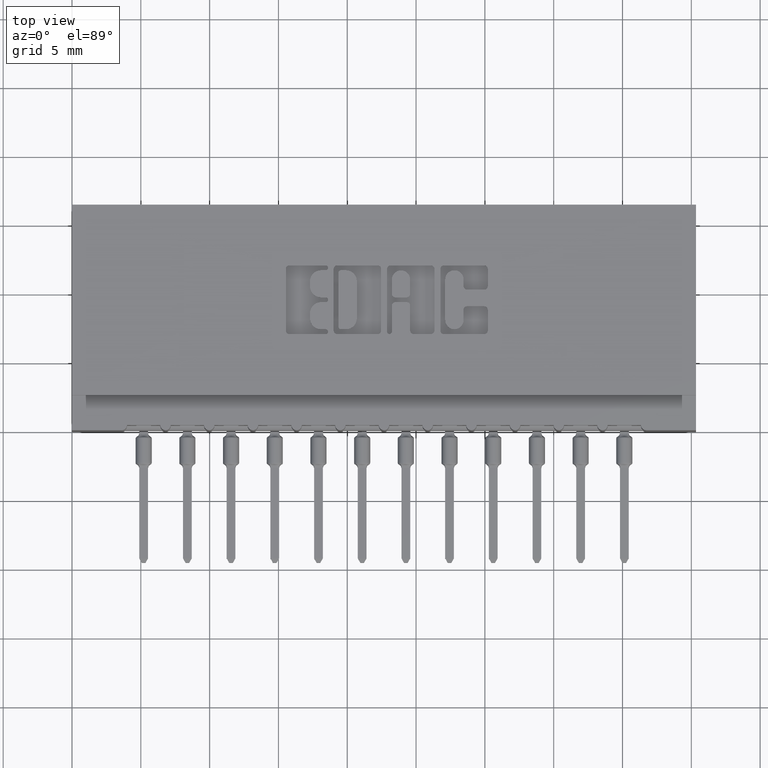
[diagram: clean part render]
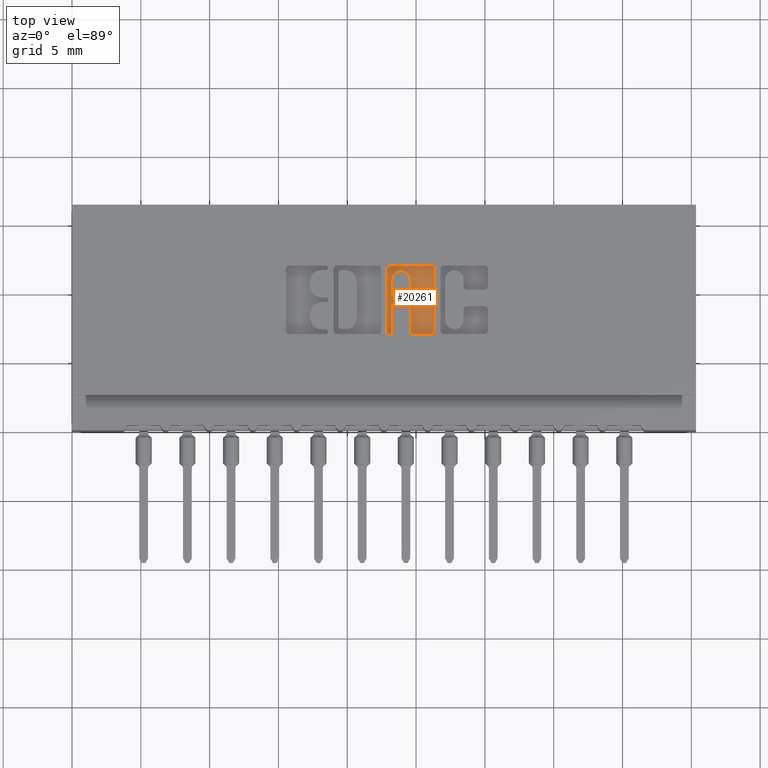
[diagram: same view with one face highlighted and labeled with its STEP entity id]
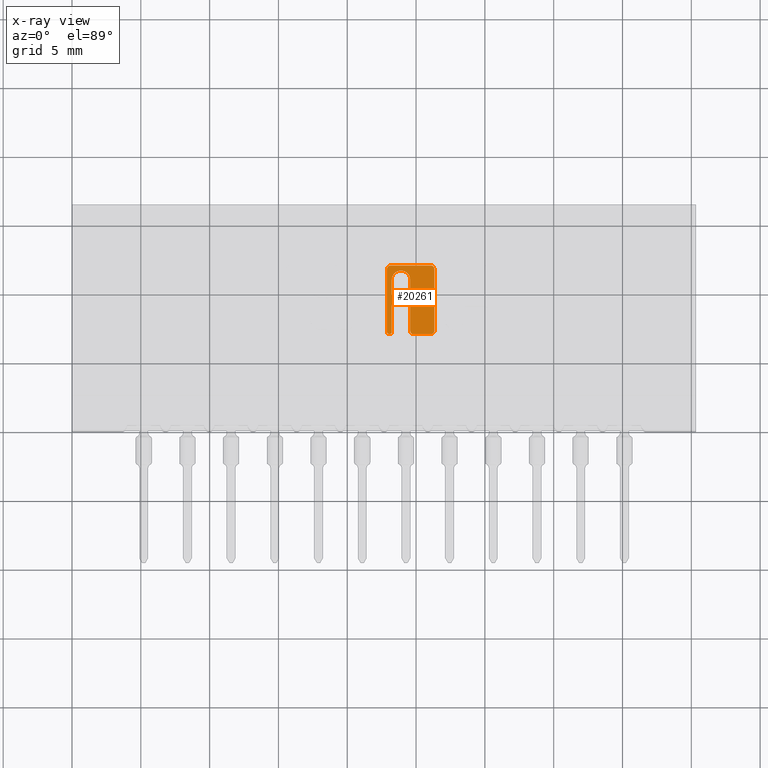
[diagram: x-ray of the same camera — body ghosted, the highlighted face saturated]
A machine part, top view. The second image highlights one B-rep face of the part: STEP entity #20261.
The next image is the same camera in x-ray: the body ghosted, the highlighted face saturated — about 0% of this face is hidden behind the body in this view.
In plain terms, the highlighted planar face has unit normal (0, 0, 1).
Its self-contained STEP definition (entity closure, byte-faithful):
#72 = CARTESIAN_POINT ( 'NONE',  ( 0.9109043816321273912, 0.4608410318342101575, -0.01000000000000000021 ) ) ;
#563 = DIRECTION ( 'NONE',  ( -1.000000000000000000, -4.153954829891640784E-15, 0.0000000000000000000 ) ) ;
#658 = DIRECTION ( 'NONE',  ( -0.0000000000000000000, 0.0000000000000000000, 1.000000000000000000 ) ) ;
#756 = ORIENTED_EDGE ( 'NONE', *, *, #1028, .T. ) ;
#839 = DIRECTION ( 'NONE',  ( -1.000000000000000000, 0.0000000000000000000, 0.0000000000000000000 ) ) ;
#860 = CARTESIAN_POINT ( 'NONE',  ( 0.9148306497136469151, 0.0000000000000000000, -0.01000000000000000021 ) ) ;
#863 = DIRECTION ( 'NONE',  ( 1.000000000000000000, 0.0000000000000000000, 0.0000000000000000000 ) ) ;
#1001 = AXIS2_PLACEMENT_3D ( 'NONE', #11071, #7434, #16379 ) ;
#1028 = EDGE_CURVE ( 'NONE', #16659, #4852, #5783, .T. ) ;
#1107 = CARTESIAN_POINT ( 'NONE',  ( 0.9771601555077856771, 0.2743432979619847001, -0.01000000000000000021 ) ) ;
#1223 = EDGE_LOOP ( 'NONE', ( #9704, #8494, #5625, #14108, #8975, #6724, #17020, #8470, #16955, #15175, #8754, #13112, #11873, #16051 ) ) ;
#1257 = DIRECTION ( 'NONE',  ( 1.000000000000000000, 0.0000000000000000000, 0.0000000000000000000 ) ) ;
#1587 = VECTOR ( 'NONE', #16197, 39.37007874015748143 ) ;
#1842 = ORIENTED_EDGE ( 'NONE', *, *, #5547, .T. ) ;
#2174 = VERTEX_POINT ( 'NONE', #14423 ) ;
#2212 = LINE ( 'NONE', #21371, #2848 ) ;
#2296 = AXIS2_PLACEMENT_3D ( 'NONE', #19679, #5643, #16288 ) ;
#2322 = VECTOR ( 'NONE', #2693, 39.37007874015748143 ) ;
#2640 = CARTESIAN_POINT ( 'NONE',  ( 0.9148306497136469151, 0.3891866393464887830, -0.01000000000000000021 ) ) ;
#2693 = DIRECTION ( 'NONE',  ( 0.0000000000000000000, 1.000000000000000000, -0.0000000000000000000 ) ) ;
#2754 = CARTESIAN_POINT ( 'NONE',  ( 0.9575288151001858372, 0.3891866393464820106, -0.01000000000000000021 ) ) ;
#2848 = VECTOR ( 'NONE', #839, 39.37007874015748143 ) ;
#3055 = AXIS2_PLACEMENT_3D ( 'NONE', #4301, #19929, #16541 ) ;
#3353 = VERTEX_POINT ( 'NONE', #14427 ) ;
#3500 = DIRECTION ( 'NONE',  ( -0.0000000000000000000, 0.0000000000000000000, 1.000000000000000000 ) ) ;
#3792 = CIRCLE ( 'NONE', #3055, 0.009815670203803203778 ) ;
#4159 = EDGE_CURVE ( 'NONE', #5770, #9442, #5197, .T. ) ;
#4301 = CARTESIAN_POINT ( 'NONE',  ( 0.9246463199174502767, 0.3558133606535456295, -0.01000000000000000021 ) ) ;
#4339 = DIRECTION ( 'NONE',  ( -0.0000000000000000000, 0.0000000000000000000, 1.000000000000000000 ) ) ;
#4351 = VERTEX_POINT ( 'NONE', #21837 ) ;
#4382 = CARTESIAN_POINT ( 'NONE',  ( 1.026729290037011522, 0.4608410318342104350, -0.01000000000000000021 ) ) ;
#4503 = DIRECTION ( 'NONE',  ( -0.0000000000000000000, 0.0000000000000000000, 1.000000000000000000 ) ) ;
#4612 = CARTESIAN_POINT ( 'NONE',  ( 0.9109043816321273912, 0.4706567020380066912, -0.01000000000000000021 ) ) ;
#4852 = VERTEX_POINT ( 'NONE', #6289 ) ;
#5197 = LINE ( 'NONE', #20512, #19293 ) ;
#5253 = CARTESIAN_POINT ( 'NONE',  ( 0.9148306497136469151, 0.4301670624473479809, -0.01000000000000000021 ) ) ;
#5346 = VECTOR ( 'NONE', #9298, 39.37007874015748143 ) ;
#5432 = CARTESIAN_POINT ( 'NONE',  ( 0.9673444853039846469, 0.2841589681657878952, -0.01000000000000000021 ) ) ;
#5547 = EDGE_CURVE ( 'NONE', #7949, #8368, #7347, .T. ) ;
#5612 = EDGE_CURVE ( 'NONE', #4351, #3353, #3792, .T. ) ;
#5625 = ORIENTED_EDGE ( 'NONE', *, *, #4159, .F. ) ;
#5633 = VERTEX_POINT ( 'NONE', #1107 ) ;
#5643 = DIRECTION ( 'NONE',  ( -0.0000000000000000000, 0.0000000000000000000, 1.000000000000000000 ) ) ;
#5647 = CIRCLE ( 'NONE', #7432, 0.009815670203795690690 ) ;
#5770 = VERTEX_POINT ( 'NONE', #6993 ) ;
#5783 = LINE ( 'NONE', #20895, #11247 ) ;
#6169 = CARTESIAN_POINT ( 'NONE',  ( 0.9575288151001878356, 0.3558133606535528459, -0.01000000000000000021 ) ) ;
#6289 = CARTESIAN_POINT ( 'NONE',  ( 0.9246463199174502767, 0.3793709691426854214, -0.01000000000000000021 ) ) ;
#6350 = VERTEX_POINT ( 'NONE', #2640 ) ;
#6353 = CIRCLE ( 'NONE', #11805, 0.009815670203796237128 ) ;
#6724 = ORIENTED_EDGE ( 'NONE', *, *, #5612, .F. ) ;
#6993 = CARTESIAN_POINT ( 'NONE',  ( 0.9010887114283309129, 0.2812142671046480302, -0.01000000000000000021 ) ) ;
#7181 = EDGE_CURVE ( 'NONE', #16435, #15759, #5647, .T. ) ;
#7221 = VERTEX_POINT ( 'NONE', #4612 ) ;
#7347 = LINE ( 'NONE', #10988, #1587 ) ;
#7432 = AXIS2_PLACEMENT_3D ( 'NONE', #4382, #21721, #8003 ) ;
#7434 = DIRECTION ( 'NONE',  ( -0.0000000000000000000, 0.0000000000000000000, 1.000000000000000000 ) ) ;
#7442 = VECTOR ( 'NONE', #17969, 39.37007874015748143 ) ;
#7536 = CARTESIAN_POINT ( 'NONE',  ( 1.026729290037013964, 0.4706567020380066912, -0.01000000000000000021 ) ) ;
#7730 = CIRCLE ( 'NONE', #2296, 0.006870969142657995000 ) ;
#7833 = VERTEX_POINT ( 'NONE', #16948 ) ;
#7949 = VERTEX_POINT ( 'NONE', #19196 ) ;
#8001 = CARTESIAN_POINT ( 'NONE',  ( -1.290985506876504259E-14, 0.3656290308573160175, -0.01000000000000000021 ) ) ;
#8003 = DIRECTION ( 'NONE',  ( 1.000000000000000000, 0.0000000000000000000, 0.0000000000000000000 ) ) ;
#8144 = FACE_BOUND ( 'NONE', #16332, .T. ) ;
#8368 = VERTEX_POINT ( 'NONE', #13955 ) ;
#8470 = ORIENTED_EDGE ( 'NONE', *, *, #21001, .F. ) ;
#8494 = ORIENTED_EDGE ( 'NONE', *, *, #10418, .T. ) ;
#8754 = ORIENTED_EDGE ( 'NONE', *, *, #13348, .F. ) ;
#8975 = ORIENTED_EDGE ( 'NONE', *, *, #10464, .F. ) ;
#9042 = EDGE_CURVE ( 'NONE', #13879, #5633, #22245, .T. ) ;
#9066 = EDGE_CURVE ( 'NONE', #13879, #12946, #15162, .T. ) ;
#9128 = LINE ( 'NONE', #19457, #7442 ) ;
#9277 = AXIS2_PLACEMENT_3D ( 'NONE', #6169, #16709, #14999 ) ;
#9298 = DIRECTION ( 'NONE',  ( 1.000000000000000000, 0.0000000000000000000, 0.0000000000000000000 ) ) ;
#9442 = VERTEX_POINT ( 'NONE', #20545 ) ;
#9481 = LINE ( 'NONE', #860, #9907 ) ;
#9510 = LINE ( 'NONE', #16426, #12178 ) ;
#9582 = DIRECTION ( 'NONE',  ( -1.000000000000000000, -3.530861605407645268E-14, 0.0000000000000000000 ) ) ;
#9704 = ORIENTED_EDGE ( 'NONE', *, *, #12429, .F. ) ;
#9907 = VECTOR ( 'NONE', #9928, 39.37007874015748143 ) ;
#9928 = DIRECTION ( 'NONE',  ( 0.0000000000000000000, 1.000000000000000000, -0.0000000000000000000 ) ) ;
#10418 = EDGE_CURVE ( 'NONE', #7221, #9442, #15765, .T. ) ;
#10464 = EDGE_CURVE ( 'NONE', #3353, #14743, #9128, .T. ) ;
#10489 = ORIENTED_EDGE ( 'NONE', *, *, #16667, .T. ) ;
#10765 = CARTESIAN_POINT ( 'NONE',  ( 0.9575288151001858372, 0.3793709691426855879, -0.01000000000000000021 ) ) ;
#10988 = CARTESIAN_POINT ( 'NONE',  ( 0.9673444853039822044, 0.0000000000000000000, -0.01000000000000000021 ) ) ;
#11006 = LINE ( 'NONE', #14505, #5346 ) ;
#11051 = AXIS2_PLACEMENT_3D ( 'NONE', #21624, #658, #863 ) ;
#11071 = CARTESIAN_POINT ( 'NONE',  ( 0.9410875675088117287, 0.4301670498449322588, -0.01000000000000000021 ) ) ;
#11247 = VECTOR ( 'NONE', #563, 39.37007874015748143 ) ;
#11473 = CIRCLE ( 'NONE', #9277, 0.009815670203796920609 ) ;
#11805 = AXIS2_PLACEMENT_3D ( 'NONE', #18744, #20320, #20224 ) ;
#11809 = CIRCLE ( 'NONE', #22287, 0.009815670203796374171 ) ;
#11838 = VERTEX_POINT ( 'NONE', #5253 ) ;
#11873 = ORIENTED_EDGE ( 'NONE', *, *, #19201, .F. ) ;
#12016 = DIRECTION ( 'NONE',  ( 0.0000000000000000000, 1.000000000000000000, -0.0000000000000000000 ) ) ;
#12111 = ORIENTED_EDGE ( 'NONE', *, *, #17905, .F. ) ;
#12178 = VECTOR ( 'NONE', #21655, 39.37007874015748143 ) ;
#12411 = CARTESIAN_POINT ( 'NONE',  ( 0.9148306497136469151, 0.2812142671046480302, -0.01000000000000000021 ) ) ;
#12429 = EDGE_CURVE ( 'NONE', #7221, #15759, #11006, .T. ) ;
#12487 = AXIS2_PLACEMENT_3D ( 'NONE', #21732, #4503, #15042 ) ;
#12907 = CARTESIAN_POINT ( 'NONE',  ( 0.9673444853039846469, 0.3558133606535435201, -0.01000000000000000021 ) ) ;
#12946 = VERTEX_POINT ( 'NONE', #12907 ) ;
#13112 = ORIENTED_EDGE ( 'NONE', *, *, #19935, .T. ) ;
#13342 = LINE ( 'NONE', #8001, #14360 ) ;
#13348 = EDGE_CURVE ( 'NONE', #20623, #5633, #2212, .T. ) ;
#13487 = ORIENTED_EDGE ( 'NONE', *, *, #14425, .F. ) ;
#13694 = DIRECTION ( 'NONE',  ( -0.0000000000000000000, 0.0000000000000000000, 1.000000000000000000 ) ) ;
#13879 = VERTEX_POINT ( 'NONE', #5432 ) ;
#13955 = CARTESIAN_POINT ( 'NONE',  ( 0.9673444853039822044, 0.3891866393464820106, -0.01000000000000000021 ) ) ;
#14042 = CARTESIAN_POINT ( 'NONE',  ( 1.036544960240806779, 0.4608410318342010537, -0.01000000000000000021 ) ) ;
#14108 = ORIENTED_EDGE ( 'NONE', *, *, #16583, .T. ) ;
#14360 = VECTOR ( 'NONE', #9582, 39.37007874015748143 ) ;
#14423 = CARTESIAN_POINT ( 'NONE',  ( 1.036544960240806779, 0.2841589681657809008, -0.01000000000000000021 ) ) ;
#14425 = EDGE_CURVE ( 'NONE', #7949, #11838, #20204, .T. ) ;
#14427 = CARTESIAN_POINT ( 'NONE',  ( 0.9148306497136469151, 0.3558133606535456295, -0.01000000000000000021 ) ) ;
#14505 = CARTESIAN_POINT ( 'NONE',  ( 0.0000000000000000000, 0.4706567020380066912, -0.01000000000000000021 ) ) ;
#14743 = VERTEX_POINT ( 'NONE', #12411 ) ;
#14860 = ORIENTED_EDGE ( 'NONE', *, *, #18841, .F. ) ;
#14999 = DIRECTION ( 'NONE',  ( 1.000000000000000000, 0.0000000000000000000, 0.0000000000000000000 ) ) ;
#15029 = CARTESIAN_POINT ( 'NONE',  ( 1.026729290037010633, 0.2743432979619847001, -0.01000000000000000021 ) ) ;
#15042 = DIRECTION ( 'NONE',  ( 1.000000000000000000, 0.0000000000000000000, 0.0000000000000000000 ) ) ;
#15056 = FACE_OUTER_BOUND ( 'NONE', #1223, .T. ) ;
#15162 = LINE ( 'NONE', #22071, #2322 ) ;
#15175 = ORIENTED_EDGE ( 'NONE', *, *, #9042, .T. ) ;
#15759 = VERTEX_POINT ( 'NONE', #7536 ) ;
#15765 = CIRCLE ( 'NONE', #17935, 0.009815670203796511215 ) ;
#16051 = ORIENTED_EDGE ( 'NONE', *, *, #7181, .T. ) ;
#16197 = DIRECTION ( 'NONE',  ( 0.0000000000000000000, -1.000000000000000000, 0.0000000000000000000 ) ) ;
#16288 = DIRECTION ( 'NONE',  ( 1.000000000000000000, 0.0000000000000000000, 0.0000000000000000000 ) ) ;
#16332 = EDGE_LOOP ( 'NONE', ( #13487, #1842, #14860, #756, #12111, #10489 ) ) ;
#16379 = DIRECTION ( 'NONE',  ( 1.000000000000000000, 0.0000000000000000000, 0.0000000000000000000 ) ) ;
#16426 = CARTESIAN_POINT ( 'NONE',  ( 1.036544960240806779, 0.0000000000000000000, -0.01000000000000000021 ) ) ;
#16435 = VERTEX_POINT ( 'NONE', #14042 ) ;
#16541 = DIRECTION ( 'NONE',  ( 1.000000000000000000, 0.0000000000000000000, 0.0000000000000000000 ) ) ;
#16583 = EDGE_CURVE ( 'NONE', #5770, #14743, #7730, .T. ) ;
#16659 = VERTEX_POINT ( 'NONE', #10765 ) ;
#16667 = EDGE_CURVE ( 'NONE', #6350, #11838, #9481, .T. ) ;
#16709 = DIRECTION ( 'NONE',  ( -0.0000000000000000000, 0.0000000000000000000, 1.000000000000000000 ) ) ;
#16948 = CARTESIAN_POINT ( 'NONE',  ( 0.9575288151001881687, 0.3656290308573498238, -0.01000000000000000021 ) ) ;
#16955 = ORIENTED_EDGE ( 'NONE', *, *, #9066, .F. ) ;
#17020 = ORIENTED_EDGE ( 'NONE', *, *, #19485, .F. ) ;
#17905 = EDGE_CURVE ( 'NONE', #6350, #4852, #18289, .T. ) ;
#17935 = AXIS2_PLACEMENT_3D ( 'NONE', #72, #13694, #20704 ) ;
#17969 = DIRECTION ( 'NONE',  ( 0.0000000000000000000, -1.000000000000000000, 0.0000000000000000000 ) ) ;
#18289 = CIRCLE ( 'NONE', #11051, 0.009815670203803340821 ) ;
#18744 = CARTESIAN_POINT ( 'NONE',  ( 1.026729290037010633, 0.2841589681657809008, -0.01000000000000000021 ) ) ;
#18841 = EDGE_CURVE ( 'NONE', #16659, #8368, #11809, .T. ) ;
#19196 = CARTESIAN_POINT ( 'NONE',  ( 0.9673444853039822044, 0.4301670498449322588, -0.01000000000000000021 ) ) ;
#19201 = EDGE_CURVE ( 'NONE', #16435, #2174, #9510, .T. ) ;
#19293 = VECTOR ( 'NONE', #12016, 39.37007874015748143 ) ;
#19457 = CARTESIAN_POINT ( 'NONE',  ( 0.9148306497136469151, 0.0000000000000000000, -0.01000000000000000021 ) ) ;
#19485 = EDGE_CURVE ( 'NONE', #7833, #4351, #13342, .T. ) ;
#19679 = CARTESIAN_POINT ( 'NONE',  ( 0.9079596805709869711, 0.2812142671046480302, -0.01000000000000000021 ) ) ;
#19929 = DIRECTION ( 'NONE',  ( -0.0000000000000000000, 0.0000000000000000000, 1.000000000000000000 ) ) ;
#19935 = EDGE_CURVE ( 'NONE', #20623, #2174, #6353, .T. ) ;
#20204 = CIRCLE ( 'NONE', #1001, 0.02625691779516779734 ) ;
#20224 = DIRECTION ( 'NONE',  ( 1.000000000000000000, 0.0000000000000000000, 0.0000000000000000000 ) ) ;
#20261 = ADVANCED_FACE ( 'NONE', ( #8144, #15056 ), #21973, .T. ) ;
#20278 = CARTESIAN_POINT ( 'NONE',  ( 0.0000000000000000000, 0.0000000000000000000, -0.01000000000000000021 ) ) ;
#20320 = DIRECTION ( 'NONE',  ( -0.0000000000000000000, 0.0000000000000000000, 1.000000000000000000 ) ) ;
#20475 = AXIS2_PLACEMENT_3D ( 'NONE', #20278, #3500, #22303 ) ;
#20512 = CARTESIAN_POINT ( 'NONE',  ( 0.9010887114283309129, 0.0000000000000000000, -0.01000000000000000021 ) ) ;
#20545 = CARTESIAN_POINT ( 'NONE',  ( 0.9010887114283309129, 0.4608410318342101575, -0.01000000000000000021 ) ) ;
#20623 = VERTEX_POINT ( 'NONE', #15029 ) ;
#20704 = DIRECTION ( 'NONE',  ( 1.000000000000000000, 0.0000000000000000000, 0.0000000000000000000 ) ) ;
#20895 = CARTESIAN_POINT ( 'NONE',  ( -1.575889869590914956E-15, 0.3793709691426815911, -0.01000000000000000021 ) ) ;
#21001 = EDGE_CURVE ( 'NONE', #12946, #7833, #11473, .T. ) ;
#21371 = CARTESIAN_POINT ( 'NONE',  ( 0.0000000000000000000, 0.2743432979619847001, -0.01000000000000000021 ) ) ;
#21624 = CARTESIAN_POINT ( 'NONE',  ( 0.9246463199174502767, 0.3891866393464887830, -0.01000000000000000021 ) ) ;
#21655 = DIRECTION ( 'NONE',  ( 0.0000000000000000000, -1.000000000000000000, 0.0000000000000000000 ) ) ;
#21721 = DIRECTION ( 'NONE',  ( -0.0000000000000000000, 0.0000000000000000000, 1.000000000000000000 ) ) ;
#21732 = CARTESIAN_POINT ( 'NONE',  ( 0.9771601555077880086, 0.2841589681657878952, -0.01000000000000000021 ) ) ;
#21837 = CARTESIAN_POINT ( 'NONE',  ( 0.9246463199174502767, 0.3656290308573487136, -0.01000000000000000021 ) ) ;
#21973 = PLANE ( 'NONE',  #20475 ) ;
#22071 = CARTESIAN_POINT ( 'NONE',  ( 0.9673444853039846469, 0.0000000000000000000, -0.01000000000000000021 ) ) ;
#22245 = CIRCLE ( 'NONE', #12487, 0.009815670203803340821 ) ;
#22287 = AXIS2_PLACEMENT_3D ( 'NONE', #2754, #4339, #1257 ) ;
#22303 = DIRECTION ( 'NONE',  ( 1.000000000000000000, 0.0000000000000000000, 0.0000000000000000000 ) ) ;